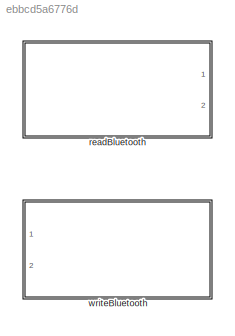
MODEL slx_ebbcd5a6776d
KIND library
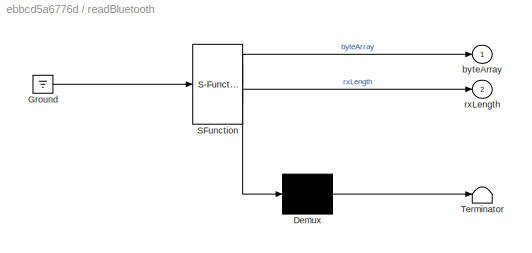
BLOCK [SubSystem] readBluetooth
  ErrorFcn = Stateflow.Translate.translate
  PermitHierarchicalResolution = ExplicitOnly
  Ports = [0, 2]
  RequestExecContextInheritance = off
  SFBlockType = MATLAB Function
  TreatAsAtomicUnit = on
BLOCK [Demux] readBluetooth/ Demux 
  Outputs = 1
  Ports = [1, 1]
BLOCK [Ground] readBluetooth/ Ground 
BLOCK [S-Function] readBluetooth/ SFunction 
  EnableBusSupport = off
  FunctionName = sf_sfun
  Parameters = numBytes,robotId
  PortCounts = [1 3]
  Ports = [1, 3]
  Tag = Stateflow S-Function hostCommsLib 2
BLOCK [Terminator] readBluetooth/ Terminator 
BLOCK [Outport] readBluetooth/byteArray
  IconDisplay = Port number
BLOCK [Outport] readBluetooth/rxLength
  IconDisplay = Port number
  Port = 2
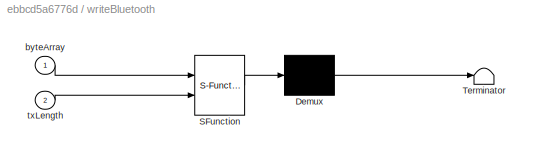
BLOCK [SubSystem] writeBluetooth
  ErrorFcn = Stateflow.Translate.translate
  PermitHierarchicalResolution = ExplicitOnly
  Ports = [2]
  RequestExecContextInheritance = off
  SFBlockType = MATLAB Function
  TreatAsAtomicUnit = on
BLOCK [Demux] writeBluetooth/ Demux 
  Outputs = 1
  Ports = [1, 1]
BLOCK [S-Function] writeBluetooth/ SFunction 
  EnableBusSupport = off
  FunctionName = sf_sfun
  Parameters = robotId
  PortCounts = [2 1]
  Ports = [2, 1]
  Tag = Stateflow S-Function hostCommsLib 1
BLOCK [Terminator] writeBluetooth/ Terminator 
BLOCK [Inport] writeBluetooth/byteArray
  IconDisplay = Port number
BLOCK [Inport] writeBluetooth/txLength
  IconDisplay = Port number
  Port = 2
CHART writeBluetooth states=1 transitions=1
  STATE_LABEL 'eML_blk_kernel()'
  STATE_LABEL "SCRIPT:\nfunction writeBluetooth(robotId,byteArray,txLength)\n%#codegen\n\ncoder.extrinsic('comms.writeWrapper');\ncomms.writeWrapper(robotId,uint8(byteArray),uint8(txLength));"
CHART readBluetooth states=1 transitions=1
  STATE_LABEL 'eML_blk_kernel()'
  STATE_LABEL "SCRIPT:\nfunction [byteArray,rxLength] = readBluetooth(robotId,numBytes)\n%#codegen\n\ncoder.extrinsic('comms.readWrapper')\n\nbyteArray = zeros([1,numBytes],'uint8');\nrxLength = 0;\n[byteArray,rxLength] = comms.readWrapper(robotId,uint8(numBytes));"
